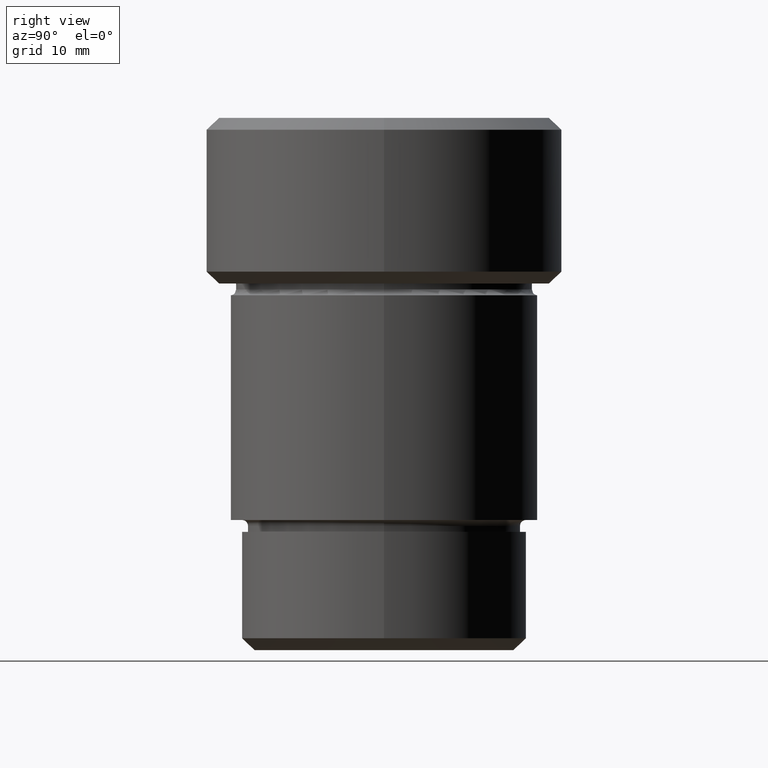
[diagram: clean part render]
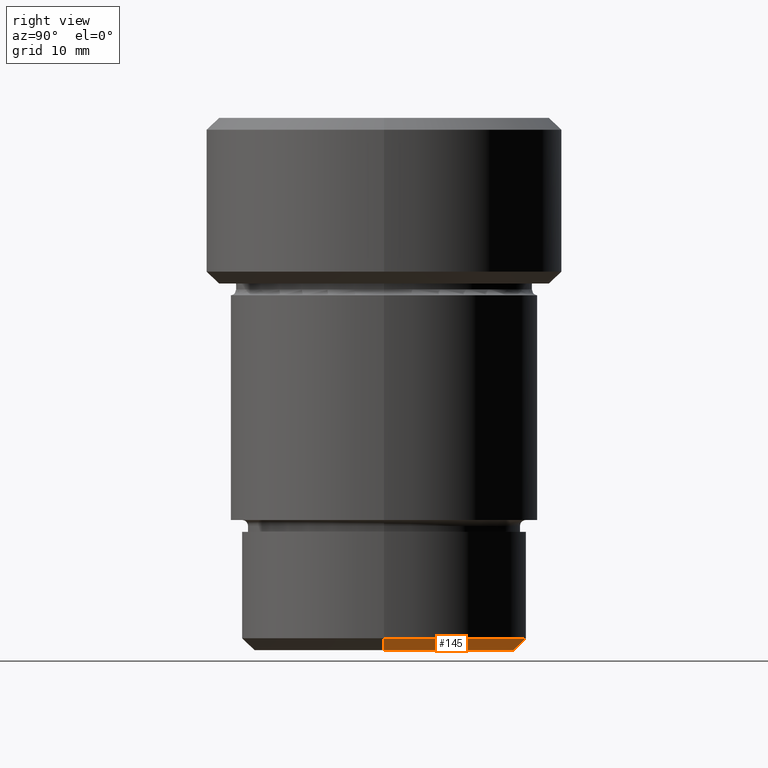
[diagram: same view with one face highlighted and labeled with its STEP entity id]
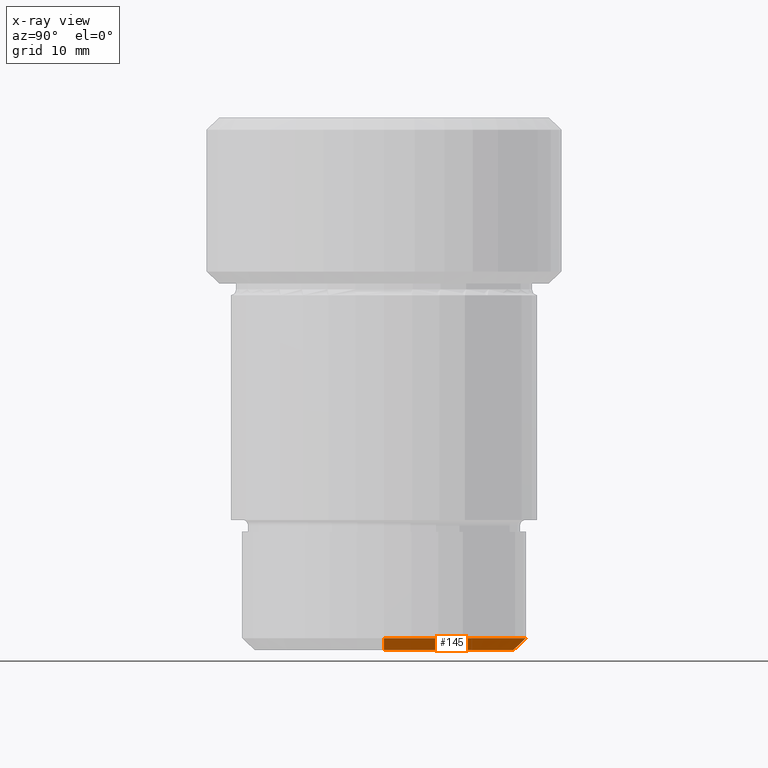
[diagram: x-ray of the same camera — body ghosted, the highlighted face saturated]
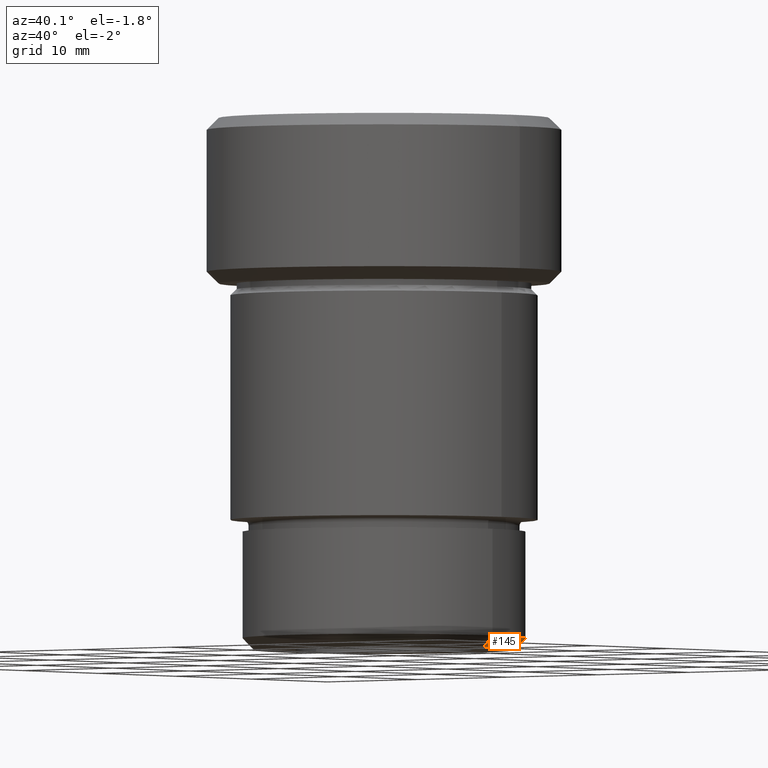
[diagram: same view with one face highlighted and labeled with its STEP entity id]
A machine part, right view. The second image highlights one B-rep face of the part: STEP entity #145.
The next image is the same camera in x-ray: the body ghosted, the highlighted face saturated — about 0% of this face is hidden behind the body in this view.
A second angle (auxiliary view) of the same face is appended — the face is thin or edge-on in the first view.
In plain terms, the highlighted conical surface has half-angle 45 deg.
Its self-contained STEP definition (entity closure, byte-faithful):
#19 = CARTESIAN_POINT ( 'NONE',  ( -12.00000000000000000, 1.469576158976823947E-15, -44.00000000000000711 ) ) ;
#47 = LINE ( 'NONE', #409, #727 ) ;
#54 = CARTESIAN_POINT ( 'NONE',  ( 0.000000000000000000, 0.000000000000000000, -44.00000000000000711 ) ) ;
#108 = DIRECTION ( 'NONE',  ( 0.000000000000000000, 0.000000000000000000, -1.000000000000000000 ) ) ;
#140 = ORIENTED_EDGE ( 'NONE', *, *, #236, .T. ) ;
#145 = ADVANCED_FACE ( 'NONE', ( #331 ), #729, .T. ) ;
#226 = EDGE_CURVE ( 'NONE', #774, #766, #270, .T. ) ;
#236 = EDGE_CURVE ( 'NONE', #463, #766, #245, .T. ) ;
#241 = DIRECTION ( 'NONE',  ( -1.000000000000000000, 0.000000000000000000, 0.000000000000000000 ) ) ;
#245 = LINE ( 'NONE', #652, #592 ) ;
#270 = CIRCLE ( 'NONE', #570, 12.00000000000000000 ) ;
#275 = ORIENTED_EDGE ( 'NONE', *, *, #226, .F. ) ;
#294 = CARTESIAN_POINT ( 'NONE',  ( 0.000000000000000000, 0.000000000000000000, -45.00000000000000000 ) ) ;
#314 = DIRECTION ( 'NONE',  ( 1.000000000000000000, 0.000000000000000000, 0.000000000000000000 ) ) ;
#331 = FACE_OUTER_BOUND ( 'NONE', #338, .T. ) ;
#338 = EDGE_LOOP ( 'NONE', ( #609, #140, #275, #376 ) ) ;
#376 = ORIENTED_EDGE ( 'NONE', *, *, #591, .F. ) ;
#384 = AXIS2_PLACEMENT_3D ( 'NONE', #647, #456, #314 ) ;
#386 = CIRCLE ( 'NONE', #713, 10.99999999999999645 ) ;
#403 = DIRECTION ( 'NONE',  ( -1.000000000000000000, 0.000000000000000000, 0.000000000000000000 ) ) ;
#409 = CARTESIAN_POINT ( 'NONE',  ( 12.00000000000000000, 0.000000000000000000, -44.00000000000000711 ) ) ;
#437 = VERTEX_POINT ( 'NONE', #633 ) ;
#456 = DIRECTION ( 'NONE',  ( -0.000000000000000000, -0.000000000000000000, 1.000000000000000000 ) ) ;
#463 = VERTEX_POINT ( 'NONE', #584 ) ;
#541 = EDGE_CURVE ( 'NONE', #463, #437, #386, .T. ) ;
#570 = AXIS2_PLACEMENT_3D ( 'NONE', #54, #787, #241 ) ;
#584 = CARTESIAN_POINT ( 'NONE',  ( -10.99999999999999645, 1.408343819019455979E-15, -45.00000000000000000 ) ) ;
#591 = EDGE_CURVE ( 'NONE', #437, #774, #47, .T. ) ;
#592 = VECTOR ( 'NONE', #719, 1000.000000000000000 ) ;
#609 = ORIENTED_EDGE ( 'NONE', *, *, #541, .F. ) ;
#633 = CARTESIAN_POINT ( 'NONE',  ( 10.99999999999999645, 0.000000000000000000, -45.00000000000000000 ) ) ;
#647 = CARTESIAN_POINT ( 'NONE',  ( 0.000000000000000000, 0.000000000000000000, -44.00000000000000711 ) ) ;
#652 = CARTESIAN_POINT ( 'NONE',  ( -12.00000000000000000, 1.469576158976823947E-15, -44.00000000000000711 ) ) ;
#698 = DIRECTION ( 'NONE',  ( 0.7071067811865512365, 0.000000000000000000, 0.7071067811865439090 ) ) ;
#713 = AXIS2_PLACEMENT_3D ( 'NONE', #294, #108, #403 ) ;
#719 = DIRECTION ( 'NONE',  ( -0.7071067811865512365, 8.659560562354978464E-17, 0.7071067811865439090 ) ) ;
#727 = VECTOR ( 'NONE', #698, 1000.000000000000000 ) ;
#729 = CONICAL_SURFACE ( 'NONE', #384, 12.00000000000000000, 0.7853981633974533860 ) ;
#742 = CARTESIAN_POINT ( 'NONE',  ( 12.00000000000000000, 0.000000000000000000, -44.00000000000000711 ) ) ;
#766 = VERTEX_POINT ( 'NONE', #19 ) ;
#774 = VERTEX_POINT ( 'NONE', #742 ) ;
#787 = DIRECTION ( 'NONE',  ( -0.000000000000000000, -0.000000000000000000, 1.000000000000000000 ) ) ;